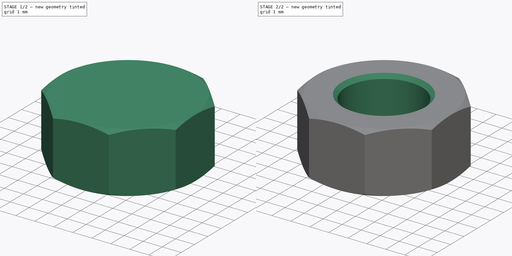
[diagram: build sequence overview — one tinted view per stage of 2, left to right]
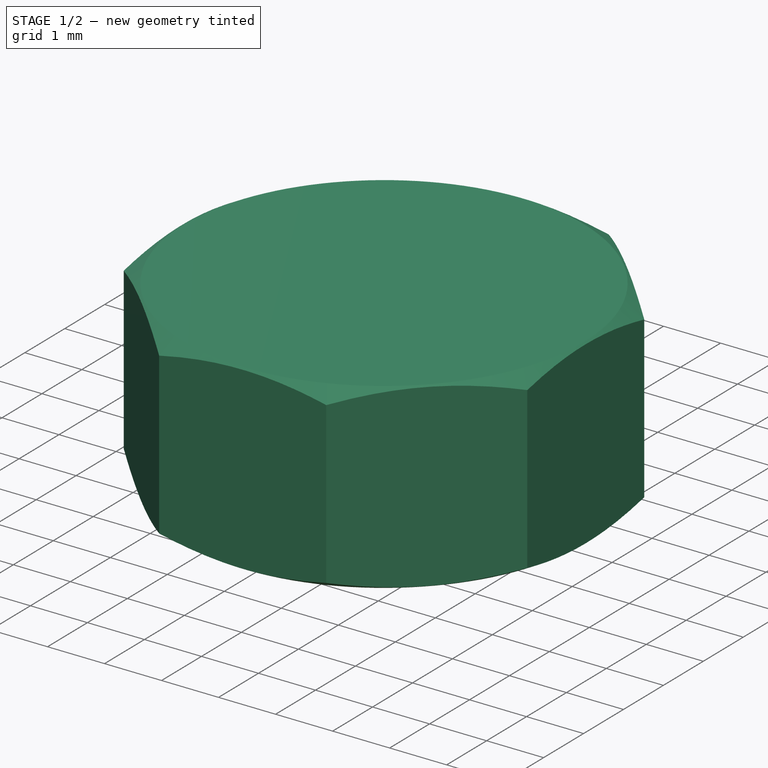
[diagram: stage 1 of 2 — iso view after this stage's code; geometry added in this stage tinted green]
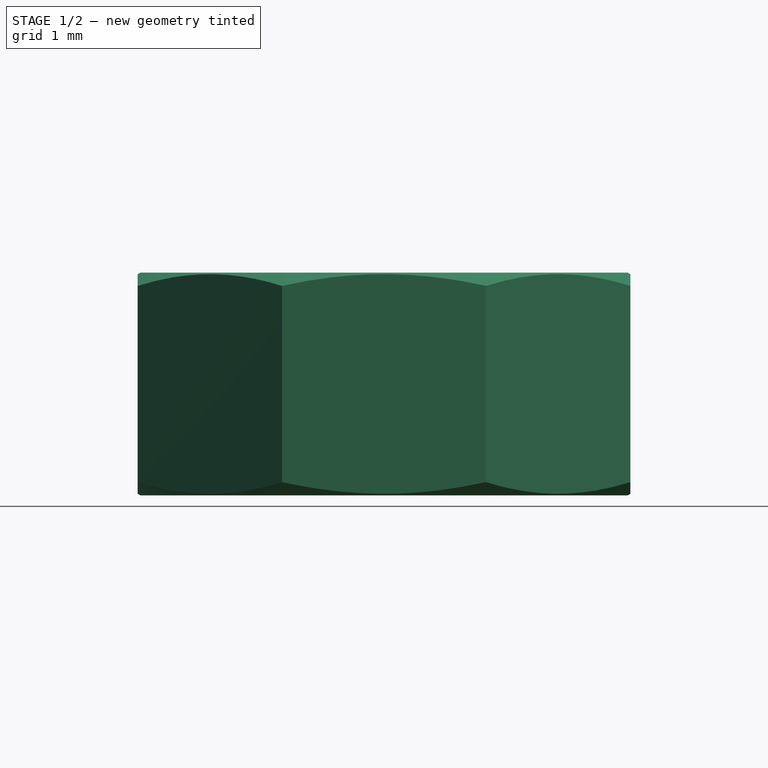
[diagram: stage 1 of 2 — front view after this stage's code; geometry added in this stage tinted green]
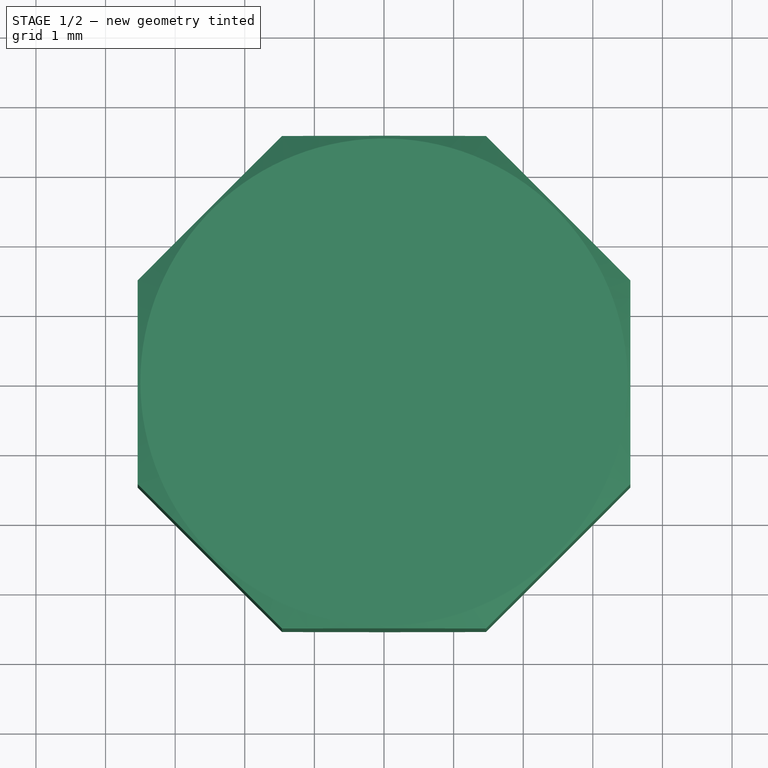
[diagram: stage 1 of 2 — top view after this stage's code; geometry added in this stage tinted green]
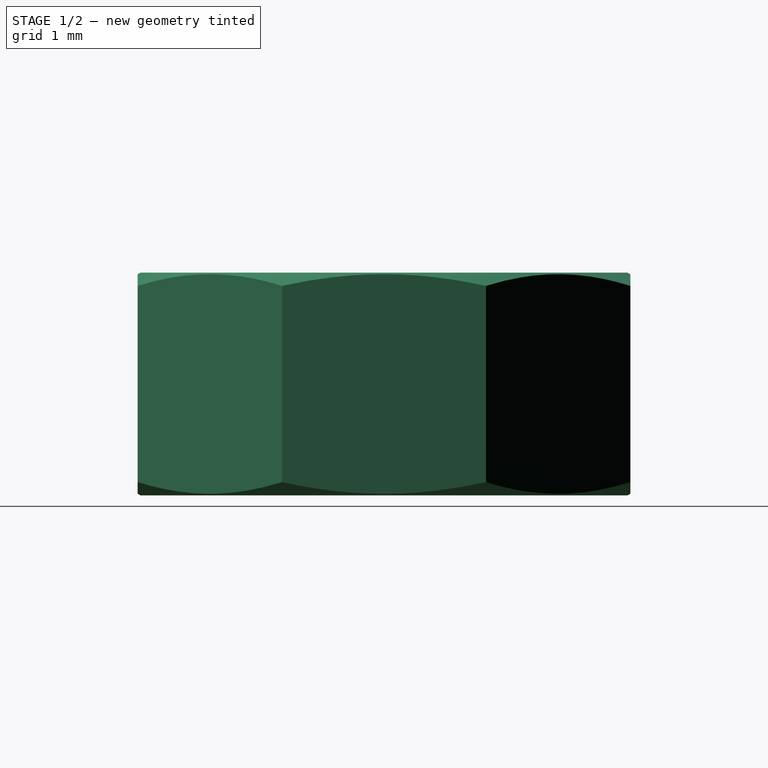
[diagram: stage 1 of 2 — right view after this stage's code; geometry added in this stage tinted green]
FCSTD DOCUMENT  (FreeCAD 0.17R13541 (Git))
Label: ISO4032_Hex_Nut_M4
Comment: Derived from the M6 hex nut
License: CC-BY 3.0
LicenseURL: http://creativecommons.org/licenses/by/3.0/
objects: Sketcher::SketchObject×3, PartDesign::Pocket×2, PartDesign::Revolution×1, PartDesign::Chamfer×1, Part::Feature×1
note: 11 computed .brp shape members not serialized (recipe doc carries the construction recipe); baked Part::Feature solids carry a one-line shape summary decoded from their .brp

FEATURE [Sketcher::SketchObject] Sketch
  MapMode = 5
  Placement = pos=(0,0,0) rot=(1,0,0;1.5708rad)
  sketch-geometry (6):
    g0: LineSegment StartX=0 StartY=3.2 StartZ=0 EndX=3.5 EndY=3.2 EndZ=0
    g1: LineSegment StartX=4 StartY=0.288675 StartZ=0 EndX=3.5 EndY=0 EndZ=0
    g2: LineSegment StartX=3.5 StartY=0 StartZ=0 EndX=0 EndY=0 EndZ=0
    g3: LineSegment StartX=0 StartY=0 StartZ=0 EndX=0 EndY=3.2 EndZ=0
    g4: LineSegment StartX=3.5 StartY=3.2 StartZ=0 EndX=4 EndY=2.91132 EndZ=0
    g5: LineSegment StartX=4 StartY=0.288675 StartZ=0 EndX=4 EndY=2.91132 EndZ=0
  constraints (17):
    c: Horizontal(g0)
    c: Coincident(g1,g2)
    c: Horizontal(g2)
    c: Coincident(g2,g3)
    c: Coincident(g3,g0)
    c: DistanceY(g3) = 3.2
    c: Vertical(g3)
    c: Coincident(g2,g-1)
    c: Angle(g1,g-1) = 2.61799
    c: Equal(g0,g2)
    c: DistanceX(g2) = -3.5
    c: DistanceX(g1) = 4
    c: Coincident(g4,g0)
    c: Angle(g0,g4) = 2.61799
    c: Coincident(g5,g4)
    c: Vertical(g5)
    c: Coincident(g5,g1)
FEATURE [PartDesign::Revolution] Revolution
  Angle = 360
  Axis = (0,0,1)
  Base = (0,0,0)
  Placement = pos=(0,0,0) rot=(1,0,0;1.5708rad)
  Profile = -> Sketch
  ReferenceAxis = -> Sketch [V_Axis]
  Refine = true
FEATURE [Sketcher::SketchObject] Sketch001  label="Hexagon"
  MapMode = 5
  Placement = pos=(0,0,3.2) rot=(0,0,1;3.14159rad)
  Support = -> [Revolution]
  sketch-geometry (10):
    g0: Circle [constr] CenterX=0 CenterY=0 CenterZ=0 NormalX=0 NormalY=0 NormalZ=1 AngleXU=0 Radius=3.83
    g1: LineSegment StartX=-3.53846 StartY=-1.46568 StartZ=0 EndX=-1.46568 EndY=-3.53846 EndZ=0
    g2: LineSegment StartX=-1.46568 StartY=-3.53846 StartZ=0 EndX=1.46568 EndY=-3.53846 EndZ=0
    g3: LineSegment StartX=1.46568 StartY=-3.53846 StartZ=0 EndX=3.53846 EndY=-1.46568 EndZ=0
    g4: LineSegment StartX=3.53846 StartY=-1.46568 StartZ=0 EndX=3.53846 EndY=1.46568 EndZ=0
    g5: LineSegment StartX=3.53846 StartY=1.46568 StartZ=0 EndX=1.46568 EndY=3.53846 EndZ=0
    g6: LineSegment StartX=1.46568 StartY=3.53846 StartZ=0 EndX=-1.46568 EndY=3.53846 EndZ=0
    g7: LineSegment StartX=-1.46568 StartY=3.53846 StartZ=0 EndX=-3.53846 EndY=1.46568 EndZ=0
    g8: LineSegment StartX=-3.53846 StartY=1.46568 StartZ=0 EndX=-3.53846 EndY=-1.46568 EndZ=0
    g9: Circle CenterX=0 CenterY=0 CenterZ=0 NormalX=0 NormalY=0 NormalZ=1 AngleXU=0 Radius=4
  constraints (28):
    c: Radius(g0) = 3.83
    c: Coincident(g0,g-1)
    c: Coincident(g1,g2)
    c: Coincident(g2,g3)
    c: Coincident(g3,g4)
    c: Coincident(g4,g5)
    c: Coincident(g5,g6)
    c: Coincident(g6,g7)
    c: Coincident(g7,g8)
    c: Coincident(g8,g1)
    c: Equal(g3,g4)
    c: Equal(g2,g1)
    c: Equal(g1,g3)
    c: Equal(g3,g5)
    c: Equal(g5,g6)
    c: Equal(g6,g7)
    c: Equal(g7,g8)
    c: Parallel(g2,g6)
    c: Parallel(g1,g5)
    c: PointOnObject(g1,g0)
    c: PointOnObject(g7,g0)
    c: PointOnObject(g6,g0)
    c: PointOnObject(g5,g0)
    c: PointOnObject(g4,g0)
    c: PointOnObject(g3,g0)
    c: Horizontal(g2)
    c: Radius(g9) = 4
    c: Coincident(g9,g-1)
FEATURE [PartDesign::Pocket] Pocket
  Length = 5
  Length2 = 100
  Placement = pos=(0,0,0) rot=(1,0,0;1.5708rad)
  Profile = -> Sketch001
  Refine = true
  Type = 0
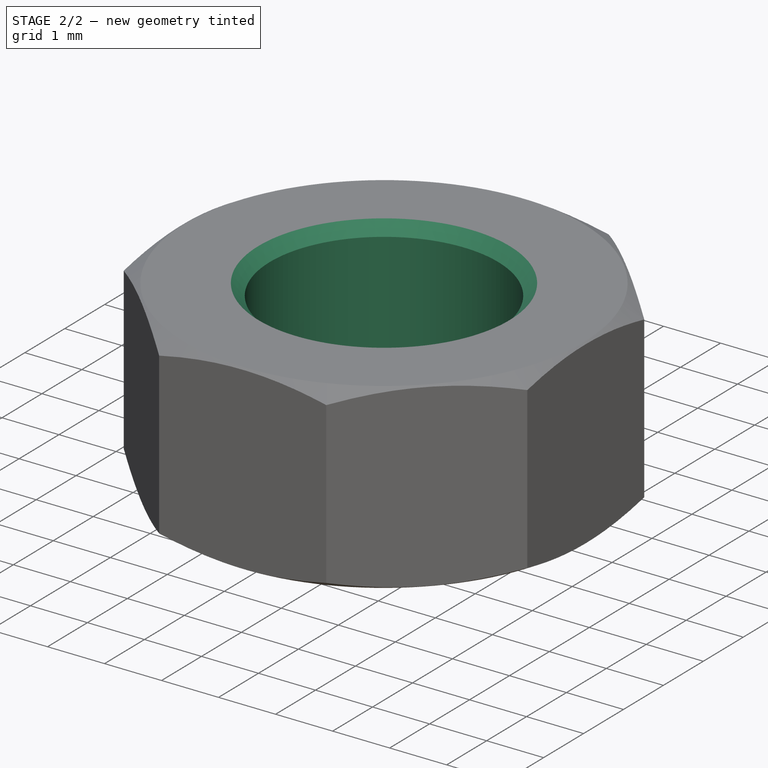
[diagram: stage 2 of 2 — iso view after this stage's code; geometry added in this stage tinted green]
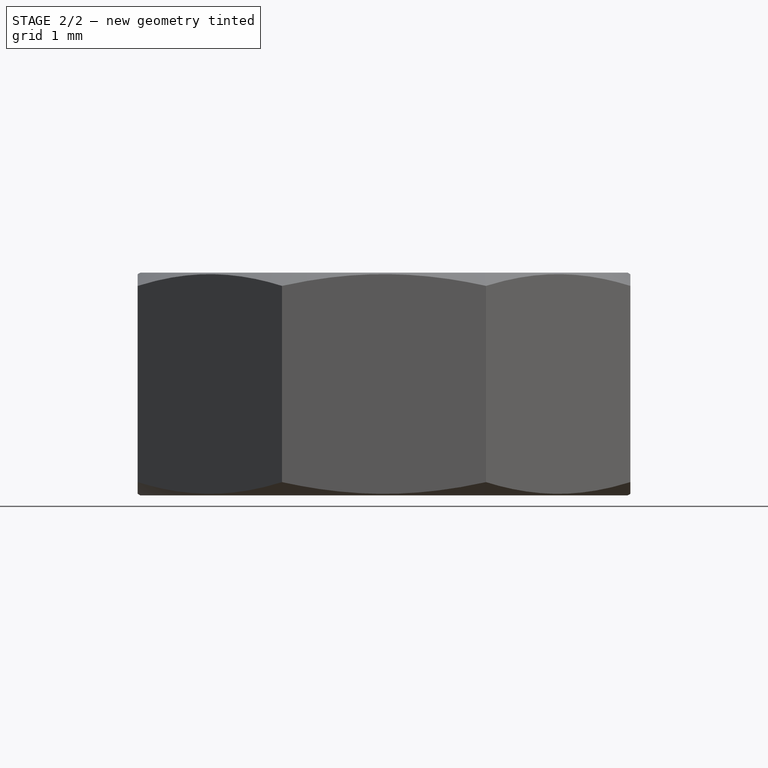
[diagram: stage 2 of 2 — front view after this stage's code; geometry added in this stage tinted green]
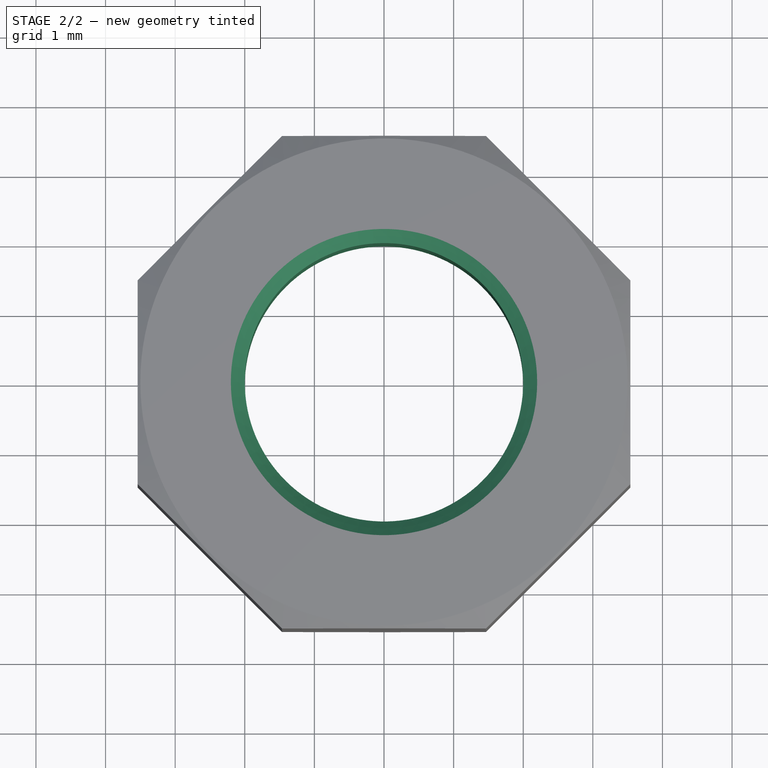
[diagram: stage 2 of 2 — top view after this stage's code; geometry added in this stage tinted green]
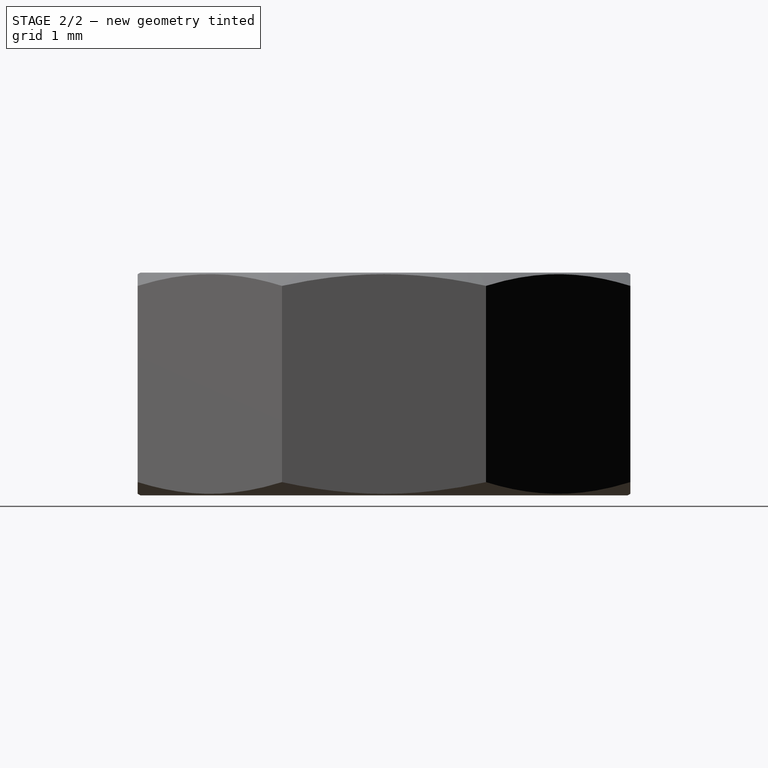
[diagram: stage 2 of 2 — right view after this stage's code; geometry added in this stage tinted green]
FEATURE [Sketcher::SketchObject] Sketch002
  MapMode = 5
  Placement = pos=(0,0,3.2) rot=(0,0,1;3.14159rad)
  Support = -> [Pocket]
  sketch-geometry (1):
    g0: Circle CenterX=0 CenterY=0 CenterZ=0 NormalX=0 NormalY=0 NormalZ=1 AngleXU=0 Radius=2
  constraints (2):
    c: Coincident(g0,g-1)
    c: Radius(g0) = 2
FEATURE [PartDesign::Pocket] Pocket001
  Length = 5
  Length2 = 100
  Placement = pos=(0,0,0) rot=(1,0,0;1.5708rad)
  Profile = -> Sketch002
  Refine = true
  Type = 0
FEATURE [PartDesign::Chamfer] Chamfer  label="ISO4032_Hex_Nut_M4-Terminado"
  Base = -> Pocket001 [Edge32,Edge29]
  Placement = pos=(0,0,0) rot=(1,0,0;1.5708rad)
  Size = 0.2
FEATURE [Part::Feature] Chamfer001  label="ISO4032_Hex_Nut_M4-Copia"
  Placement = pos=(0,0,0) rot=(1,0,0;1.5708rad)
  shape: bbox 7.66 x 7.66 x 3.203 mm, 15 faces (baked)
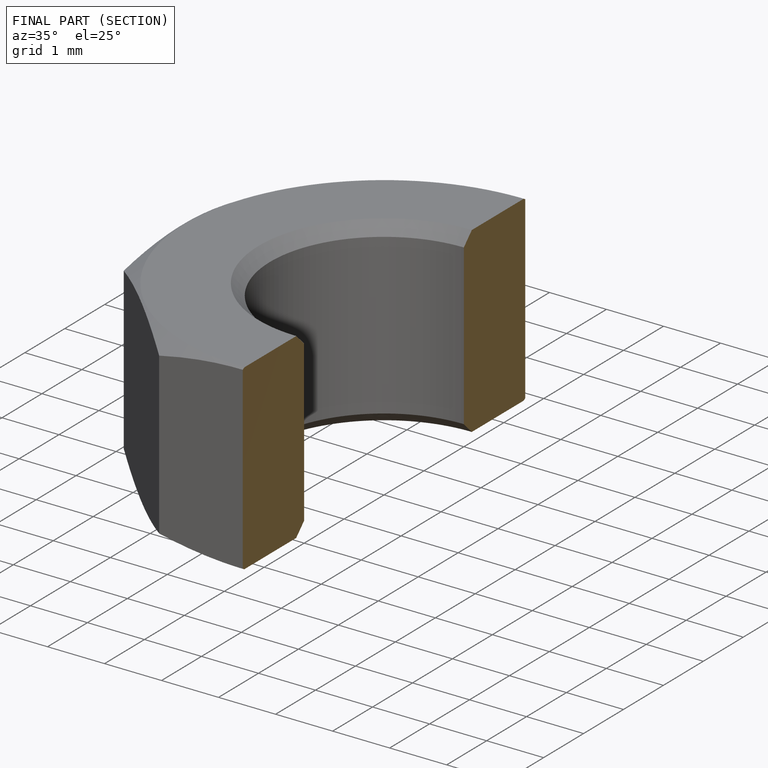
[diagram: finished part — half-section view (interior)]
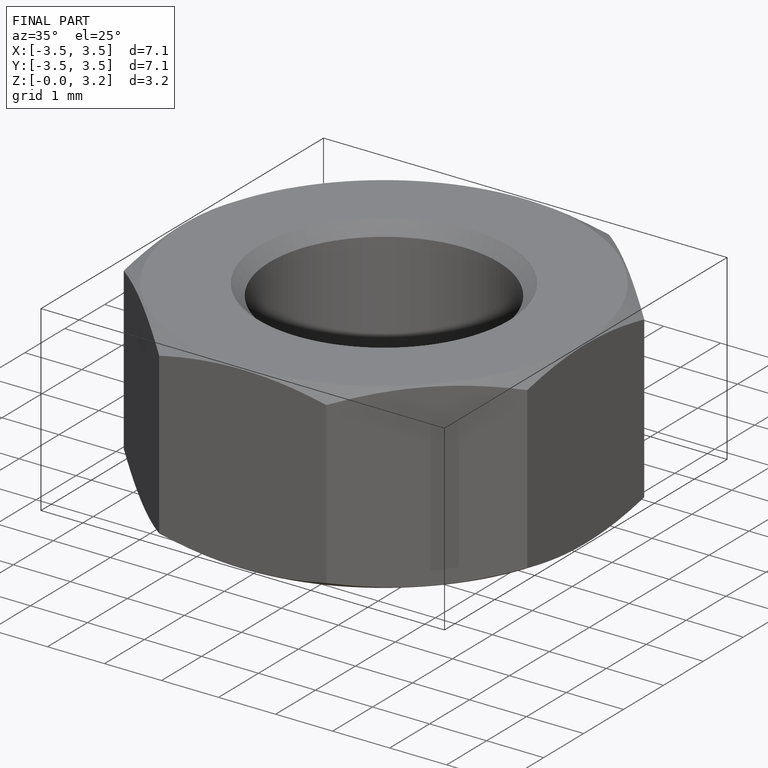
[diagram: finished part — iso view with bounding-box wireframe]
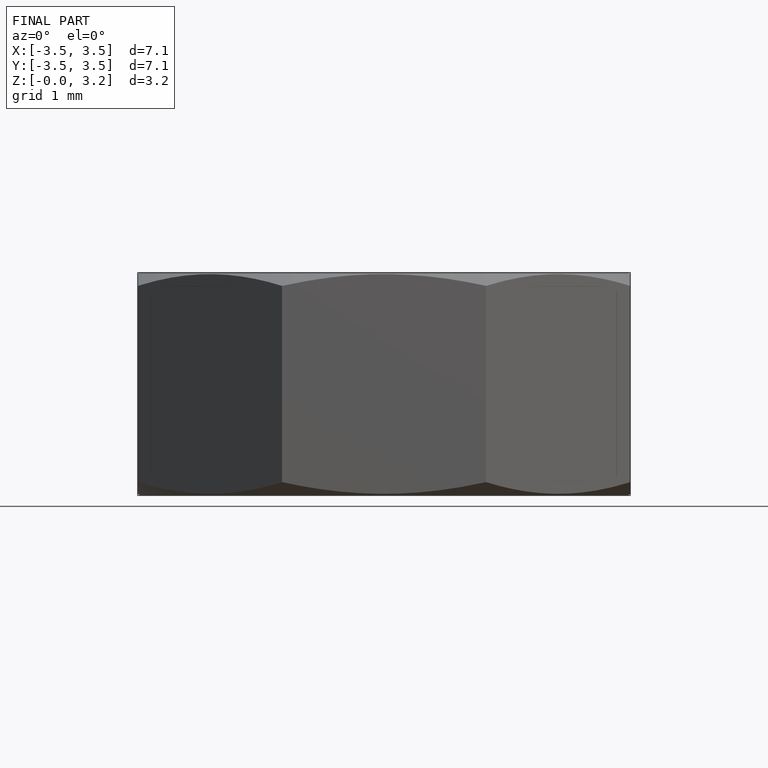
[diagram: finished part — front view with bounding-box wireframe]
